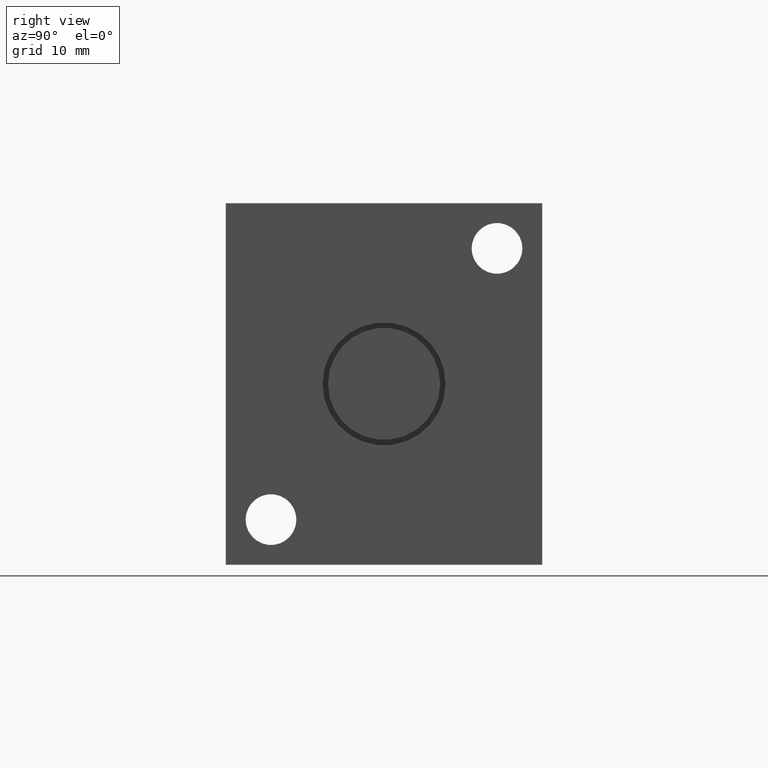
[diagram: clean part render]
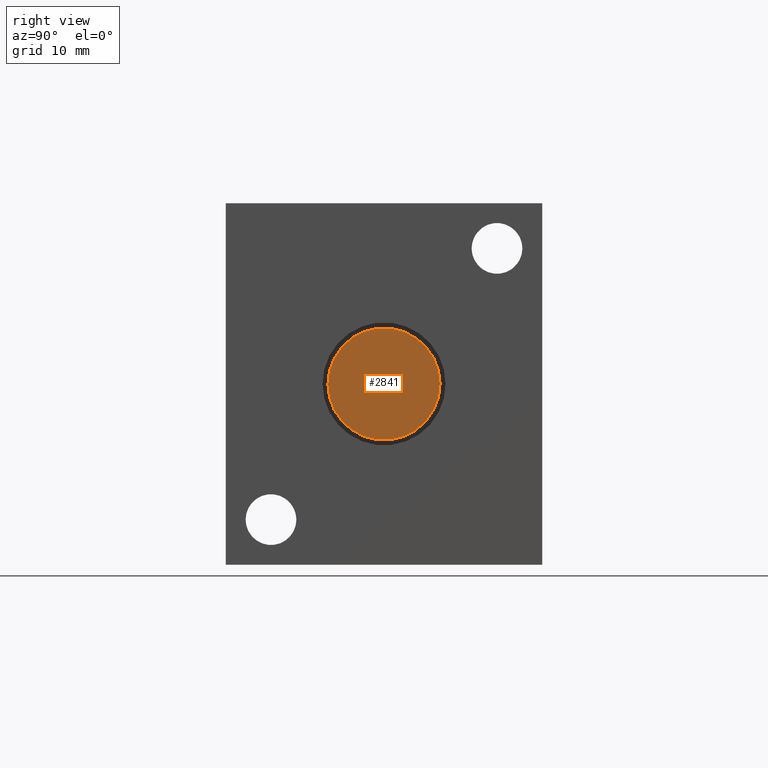
[diagram: same view with one face highlighted and labeled with its STEP entity id]
A machine part, right view. The second image highlights one B-rep face of the part: STEP entity #2841.
In plain terms, the highlighted planar face has unit normal (1, 0, 0).
Its self-contained STEP definition (entity closure, byte-faithful):
#1409=CARTESIAN_POINT('',(5.6515E1,0.E0,0.E0));
#1410=DIRECTION('',(1.E0,0.E0,0.E0));
#1411=DIRECTION('',(0.E0,1.E0,0.E0));
#1412=AXIS2_PLACEMENT_3D('',#1409,#1410,#1411);
#1417=CARTESIAN_POINT('',(5.6515E1,0.E0,0.E0));
#1418=DIRECTION('',(1.E0,0.E0,0.E0));
#1419=DIRECTION('',(0.E0,-1.E0,0.E0));
#1420=AXIS2_PLACEMENT_3D('',#1417,#1418,#1419);
#1606=CARTESIAN_POINT('',(5.6515E1,7.874E0,0.E0));
#1607=CARTESIAN_POINT('',(5.6515E1,-7.874E0,0.E0));
#1608=VERTEX_POINT('',#1606);
#1609=VERTEX_POINT('',#1607);
#2832=CARTESIAN_POINT('',(5.6515E1,0.E0,0.E0));
#2833=DIRECTION('',(1.E0,0.E0,0.E0));
#2834=DIRECTION('',(0.E0,1.E0,0.E0));
#2835=AXIS2_PLACEMENT_3D('',#2832,#2833,#2834);
#2836=PLANE('',#2835);
#2837=ORIENTED_EDGE('',*,*,#2788,.F.);
#2838=ORIENTED_EDGE('',*,*,#2814,.F.);
#2839=EDGE_LOOP('',(#2837,#2838));
#2840=FACE_OUTER_BOUND('',#2839,.F.);
#2841=ADVANCED_FACE('',(#2840),#2836,.T.);
#1413=CIRCLE('',#1412,7.874E0);
#1421=CIRCLE('',#1420,7.874E0);
#2788=EDGE_CURVE('',#1608,#1609,#1413,.T.);
#2814=EDGE_CURVE('',#1609,#1608,#1421,.T.);